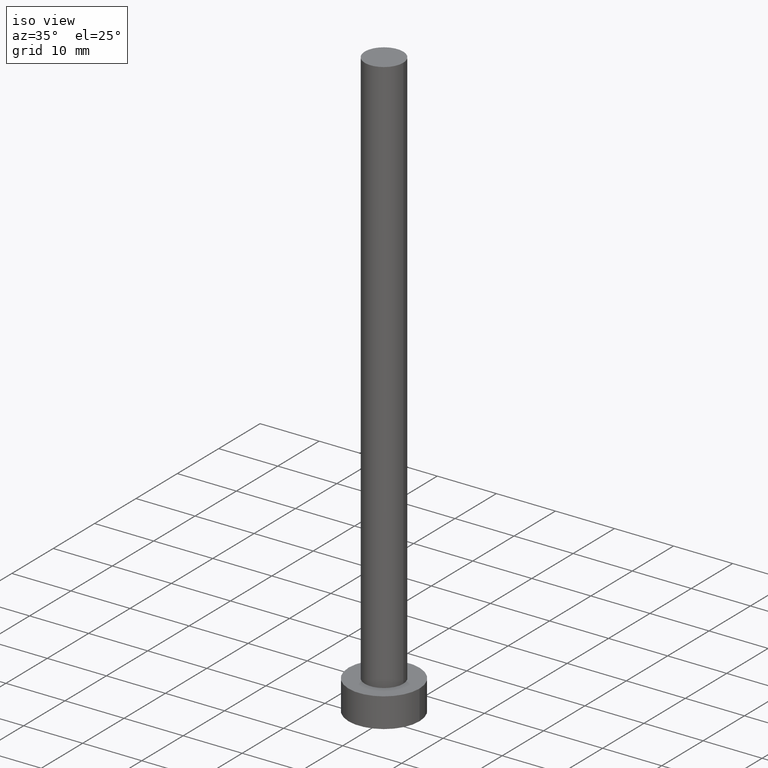
[diagram: clean part render]
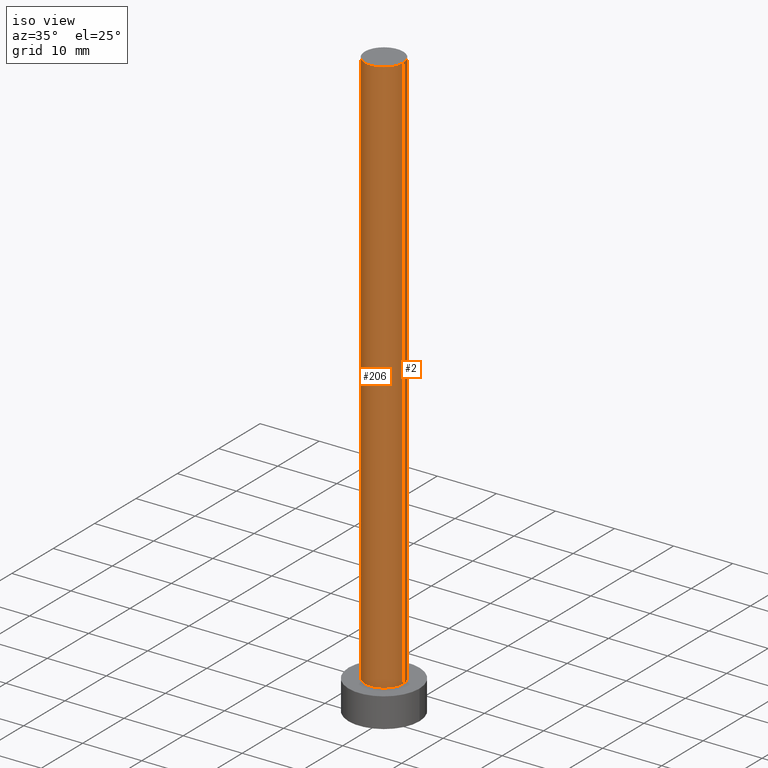
[diagram: same view with one multi-face feature highlighted, each face labeled with its STEP entity id]
A machine part, iso view. The highlighted faces form ONE feature: a constant-radius fillet chain: 2 tangent blend faces with common blend radius 3.25 mm. The faces share edges in the B-rep.
Their STEP definitions:
[1] entity #206 (Cylinder):
#22 = CARTESIAN_POINT ( 'NONE',  ( -3.250000000000000444, 0.000000000000000000, 100.0000000000000000 ) ) ;
#24 = CARTESIAN_POINT ( 'NONE',  ( 0.000000000000000000, 0.000000000000000000, 100.0000000000000000 ) ) ;
#27 = CARTESIAN_POINT ( 'NONE',  ( 3.250000000000000444, 3.980102097228898231E-16, 5.000000000000000000 ) ) ;
#28 = DIRECTION ( 'NONE',  ( -0.000000000000000000, -0.000000000000000000, -1.000000000000000000 ) ) ;
#31 = DIRECTION ( 'NONE',  ( -0.000000000000000000, -0.000000000000000000, -1.000000000000000000 ) ) ;
#43 = CARTESIAN_POINT ( 'NONE',  ( 3.250000000000000444, 3.980102097228898231E-16, 100.0000000000000000 ) ) ;
#44 = VERTEX_POINT ( 'NONE', #27 ) ;
#51 = DIRECTION ( 'NONE',  ( 1.000000000000000000, 0.000000000000000000, 0.000000000000000000 ) ) ;
#59 = ORIENTED_EDGE ( 'NONE', *, *, #101, .F. ) ;
#63 = ORIENTED_EDGE ( 'NONE', *, *, #119, .F. ) ;
#66 = DIRECTION ( 'NONE',  ( 1.000000000000000000, 0.000000000000000000, 0.000000000000000000 ) ) ;
#69 = CARTESIAN_POINT ( 'NONE',  ( 3.250000000000000444, 3.980102097228898231E-16, 100.0000000000000000 ) ) ;
#73 = DIRECTION ( 'NONE',  ( -1.000000000000000000, 0.000000000000000000, 0.000000000000000000 ) ) ;
#81 = VERTEX_POINT ( 'NONE', #43 ) ;
#82 = EDGE_CURVE ( 'NONE', #104, #126, #203, .T. ) ;
#87 = ORIENTED_EDGE ( 'NONE', *, *, #82, .T. ) ;
#89 = LINE ( 'NONE', #69, #93 ) ;
#93 = VECTOR ( 'NONE', #28, 1000.000000000000000 ) ;
#96 = CIRCLE ( 'NONE', #255, 3.250000000000000444 ) ;
#101 = EDGE_CURVE ( 'NONE', #104, #81, #151, .T. ) ;
#104 = VERTEX_POINT ( 'NONE', #152 ) ;
#108 = AXIS2_PLACEMENT_3D ( 'NONE', #243, #31, #73 ) ;
#119 = EDGE_CURVE ( 'NONE', #81, #44, #89, .T. ) ;
#126 = VERTEX_POINT ( 'NONE', #131 ) ;
#127 = AXIS2_PLACEMENT_3D ( 'NONE', #24, #240, #66 ) ;
#131 = CARTESIAN_POINT ( 'NONE',  ( -3.250000000000000444, 0.000000000000000000, 5.000000000000000000 ) ) ;
#136 = DIRECTION ( 'NONE',  ( 0.000000000000000000, 0.000000000000000000, 1.000000000000000000 ) ) ;
#151 = CIRCLE ( 'NONE', #127, 3.250000000000000444 ) ;
#152 = CARTESIAN_POINT ( 'NONE',  ( -3.250000000000000444, 0.000000000000000000, 100.0000000000000000 ) ) ;
#161 = VECTOR ( 'NONE', #218, 1000.000000000000000 ) ;
#183 = ORIENTED_EDGE ( 'NONE', *, *, #251, .T. ) ;
#194 = EDGE_LOOP ( 'NONE', ( #63, #59, #87, #183 ) ) ;
#203 = LINE ( 'NONE', #22, #161 ) ;
#206 = ADVANCED_FACE ( 'NONE', ( #208 ), #245, .T. ) ;
#208 = FACE_OUTER_BOUND ( 'NONE', #194, .T. ) ;
#218 = DIRECTION ( 'NONE',  ( -0.000000000000000000, -0.000000000000000000, -1.000000000000000000 ) ) ;
#240 = DIRECTION ( 'NONE',  ( 0.000000000000000000, 0.000000000000000000, 1.000000000000000000 ) ) ;
#243 = CARTESIAN_POINT ( 'NONE',  ( 0.000000000000000000, 0.000000000000000000, 100.0000000000000000 ) ) ;
#245 = CYLINDRICAL_SURFACE ( 'NONE', #108, 3.250000000000000444 ) ;
#247 = CARTESIAN_POINT ( 'NONE',  ( 0.000000000000000000, 0.000000000000000000, 5.000000000000000000 ) ) ;
#251 = EDGE_CURVE ( 'NONE', #126, #44, #96, .T. ) ;
#255 = AXIS2_PLACEMENT_3D ( 'NONE', #247, #136, #51 ) ;
[2] entity #2 (Cylinder):
#2 = ADVANCED_FACE ( 'NONE', ( #84 ), #184, .T. ) ;
#22 = CARTESIAN_POINT ( 'NONE',  ( -3.250000000000000444, 0.000000000000000000, 100.0000000000000000 ) ) ;
#25 = AXIS2_PLACEMENT_3D ( 'NONE', #47, #33, #155 ) ;
#27 = CARTESIAN_POINT ( 'NONE',  ( 3.250000000000000444, 3.980102097228898231E-16, 5.000000000000000000 ) ) ;
#28 = DIRECTION ( 'NONE',  ( -0.000000000000000000, -0.000000000000000000, -1.000000000000000000 ) ) ;
#30 = CIRCLE ( 'NONE', #25, 3.250000000000000444 ) ;
#33 = DIRECTION ( 'NONE',  ( 0.000000000000000000, 0.000000000000000000, 1.000000000000000000 ) ) ;
#42 = CARTESIAN_POINT ( 'NONE',  ( 0.000000000000000000, 0.000000000000000000, 100.0000000000000000 ) ) ;
#43 = CARTESIAN_POINT ( 'NONE',  ( 3.250000000000000444, 3.980102097228898231E-16, 100.0000000000000000 ) ) ;
#44 = VERTEX_POINT ( 'NONE', #27 ) ;
#47 = CARTESIAN_POINT ( 'NONE',  ( 0.000000000000000000, 0.000000000000000000, 5.000000000000000000 ) ) ;
#57 = AXIS2_PLACEMENT_3D ( 'NONE', #42, #169, #167 ) ;
#68 = ORIENTED_EDGE ( 'NONE', *, *, #119, .T. ) ;
#69 = CARTESIAN_POINT ( 'NONE',  ( 3.250000000000000444, 3.980102097228898231E-16, 100.0000000000000000 ) ) ;
#81 = VERTEX_POINT ( 'NONE', #43 ) ;
#82 = EDGE_CURVE ( 'NONE', #104, #126, #203, .T. ) ;
#84 = FACE_OUTER_BOUND ( 'NONE', #186, .T. ) ;
#89 = LINE ( 'NONE', #69, #93 ) ;
#93 = VECTOR ( 'NONE', #28, 1000.000000000000000 ) ;
#104 = VERTEX_POINT ( 'NONE', #152 ) ;
#119 = EDGE_CURVE ( 'NONE', #81, #44, #89, .T. ) ;
#126 = VERTEX_POINT ( 'NONE', #131 ) ;
#131 = CARTESIAN_POINT ( 'NONE',  ( -3.250000000000000444, 0.000000000000000000, 5.000000000000000000 ) ) ;
#138 = CIRCLE ( 'NONE', #164, 3.250000000000000444 ) ;
#147 = ORIENTED_EDGE ( 'NONE', *, *, #228, .F. ) ;
#152 = CARTESIAN_POINT ( 'NONE',  ( -3.250000000000000444, 0.000000000000000000, 100.0000000000000000 ) ) ;
#155 = DIRECTION ( 'NONE',  ( 1.000000000000000000, 0.000000000000000000, 0.000000000000000000 ) ) ;
#157 = DIRECTION ( 'NONE',  ( 1.000000000000000000, 0.000000000000000000, 0.000000000000000000 ) ) ;
#159 = CARTESIAN_POINT ( 'NONE',  ( 0.000000000000000000, 0.000000000000000000, 100.0000000000000000 ) ) ;
#161 = VECTOR ( 'NONE', #218, 1000.000000000000000 ) ;
#164 = AXIS2_PLACEMENT_3D ( 'NONE', #159, #210, #157 ) ;
#167 = DIRECTION ( 'NONE',  ( -1.000000000000000000, 0.000000000000000000, 0.000000000000000000 ) ) ;
#169 = DIRECTION ( 'NONE',  ( -0.000000000000000000, -0.000000000000000000, -1.000000000000000000 ) ) ;
#180 = ORIENTED_EDGE ( 'NONE', *, *, #213, .T. ) ;
#184 = CYLINDRICAL_SURFACE ( 'NONE', #57, 3.250000000000000444 ) ;
#186 = EDGE_LOOP ( 'NONE', ( #147, #68, #180, #231 ) ) ;
#203 = LINE ( 'NONE', #22, #161 ) ;
#210 = DIRECTION ( 'NONE',  ( 0.000000000000000000, 0.000000000000000000, 1.000000000000000000 ) ) ;
#213 = EDGE_CURVE ( 'NONE', #44, #126, #30, .T. ) ;
#218 = DIRECTION ( 'NONE',  ( -0.000000000000000000, -0.000000000000000000, -1.000000000000000000 ) ) ;
#228 = EDGE_CURVE ( 'NONE', #81, #104, #138, .T. ) ;
#231 = ORIENTED_EDGE ( 'NONE', *, *, #82, .F. ) ;